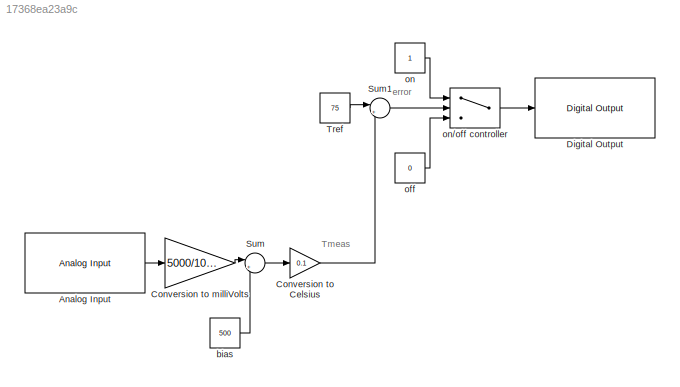
MODEL slx_17368ea23a9c
KIND model
BLOCK [Reference] Analog Input  REF=arduinolib/Analog Input
  Ports = [0, 1]
  SourceBlock = arduinolib/Analog Input
  SourceType = Arduino Analog Input
  pinNumber = 0
  sampleTime = 0.1
BLOCK [Gain] Conversion to Celsius
  Gain = 0.1
  OutDataTypeStr = Inherit: Inherit via internal rule
  ParamDataTypeStr = Inherit: Inherit via internal rule
  SaturateOnIntegerOverflow = off
BLOCK [Gain] Conversion to milliVolts
  Gain = 5000/1023
  OutDataTypeStr = Inherit: Inherit via internal rule
  ParamDataTypeStr = Inherit: Inherit via internal rule
  SaturateOnIntegerOverflow = off
BLOCK [Reference] Digital Output  REF=arduinolib/Digital Output
  Ports = [1]
  SourceBlock = arduinolib/Digital Output
  SourceType = Arduino Digital Output
  pinNumber = 9
BLOCK [Sum] Sum
  IconShape = round
  InputSameDT = off
  Inputs = |+-
  OutDataTypeStr = Inherit: Inherit via internal rule
  Ports = [2, 1]
  SaturateOnIntegerOverflow = off
BLOCK [Sum] Sum1
  IconShape = round
  InputSameDT = off
  Inputs = |+-
  OutDataTypeStr = Inherit: Inherit via internal rule
  Ports = [2, 1]
  SaturateOnIntegerOverflow = off
BLOCK [Constant] Tref
  Value = 75
BLOCK [Constant] bias
  Value = 500
BLOCK [Constant] off
  Value = 0
BLOCK [Constant] on
BLOCK [Switch] on//off controller
  InputSameDT = off
  SaturateOnIntegerOverflow = off
ANNOTATION (root): Tmeas
ANNOTATION (root): error
LINE Analog Input:1 -> Conversion to milliVolts:1
LINE Conversion to Celsius:1 -> Sum1:2
LINE Conversion to milliVolts:1 -> Sum:1
LINE Sum1:1 -> on//off controller:2
LINE Sum:1 -> Conversion to Celsius:1
LINE Tref:1 -> Sum1:1
LINE bias:1 -> Sum:2
LINE off:1 -> on//off controller:3
LINE on//off controller:1 -> Digital Output:1
LINE on:1 -> on//off controller:1
